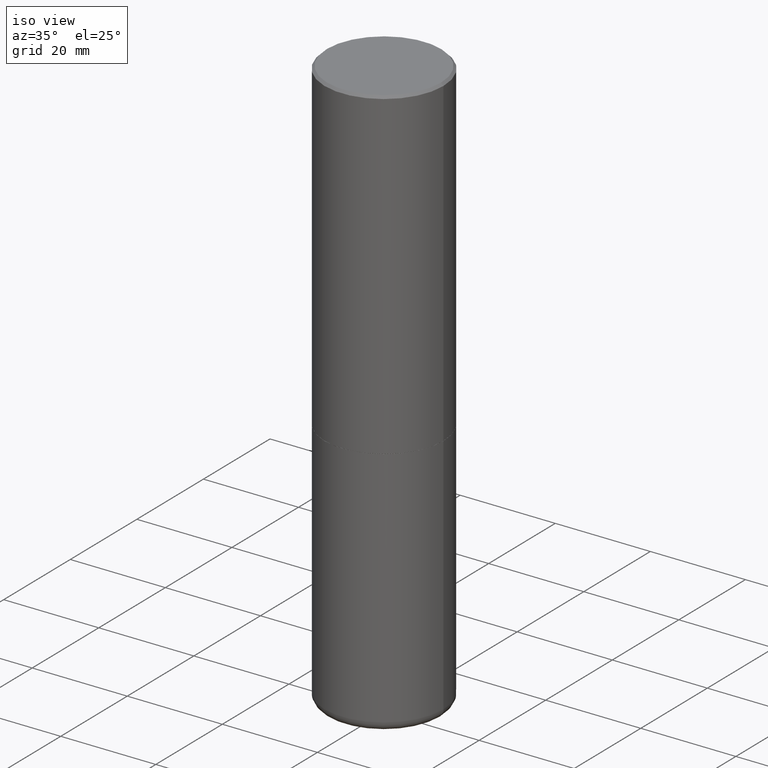
[diagram: clean part render]
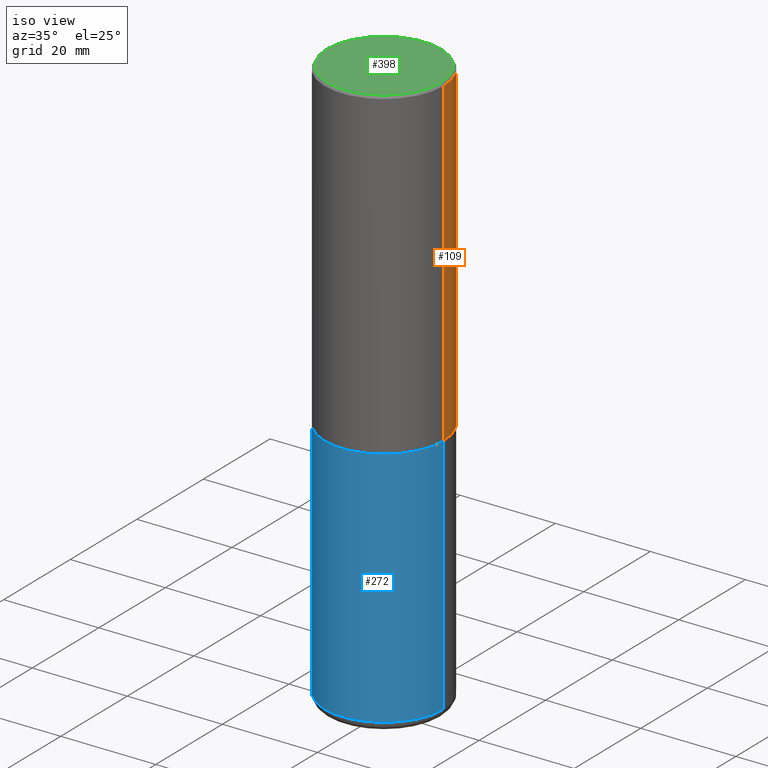
[diagram: same view with three faces highlighted in distinct colors, each labeled with its STEP entity id]
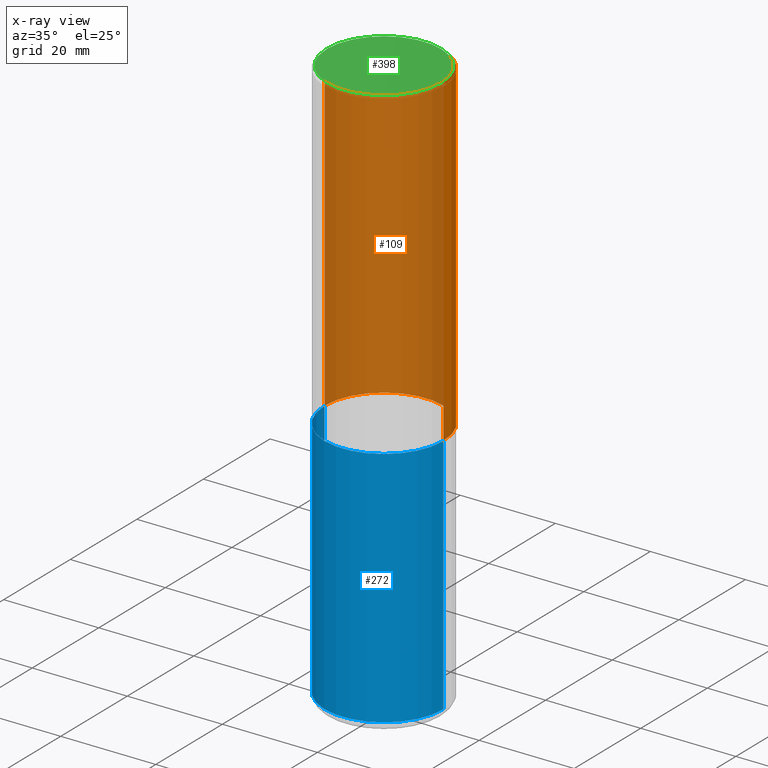
[diagram: x-ray of the same camera — body ghosted, the three highlighted faces saturated]
A machine part, iso view with three faces highlighted in distinct colors.
The next image is the same camera in x-ray (body ghosted, the three faces saturated) — at least one of them is partly hidden behind the body in this view.
Their STEP definitions:

[orange] entity #109 — the highlighted cylindrical surface (partial cylindrical patch) has radius 12.5006 mm, axis along (-0, 0, 1).
#11 = LINE ( 'NONE', #13, #141 ) ;
#13 = CARTESIAN_POINT ( 'NONE',  ( 0.4921500000000000874, -3.436665081823296565E-15, 2.399810400207970163E-29 ) ) ;
#15 = VERTEX_POINT ( 'NONE', #45 ) ;
#16 = FACE_OUTER_BOUND ( 'NONE', #406, .T. ) ;
#36 = DIRECTION ( 'NONE',  ( -2.445468806185136877E-29, 3.491481338843145188E-15, 1.000000000000000000 ) ) ;
#40 = LINE ( 'NONE', #43, #409 ) ;
#43 = CARTESIAN_POINT ( 'NONE',  ( -0.4921500000000000874, 3.496936074043333686E-15, -2.420853904668952350E-29 ) ) ;
#45 = CARTESIAN_POINT ( 'NONE',  ( 0.4921499999999999764, -3.446223716380122349E-15, -0.02000000000000010797 ) ) ;
#50 = ORIENTED_EDGE ( 'NONE', *, *, #128, .F. ) ;
#54 = CARTESIAN_POINT ( 'NONE',  ( 0.000000000000000000, 0.000000000000000000, 0.000000000000000000 ) ) ;
#78 = ORIENTED_EDGE ( 'NONE', *, *, #189, .T. ) ;
#86 = CYLINDRICAL_SURFACE ( 'NONE', #88, 0.4921500000000000874 ) ;
#88 = AXIS2_PLACEMENT_3D ( 'NONE', #54, #293, #240 ) ;
#109 = ADVANCED_FACE ( 'NONE', ( #16 ), #86, .T. ) ;
#128 = EDGE_CURVE ( 'NONE', #207, #15, #11, .T. ) ;
#130 = DIRECTION ( 'NONE',  ( -2.445468806185136877E-29, 3.491481338843145188E-15, 1.000000000000000000 ) ) ;
#141 = VECTOR ( 'NONE', #130, 39.37007874015748143 ) ;
#175 = AXIS2_PLACEMENT_3D ( 'NONE', #232, #401, #361 ) ;
#176 = VERTEX_POINT ( 'NONE', #347 ) ;
#177 = CARTESIAN_POINT ( 'NONE',  ( -0.4921499999999999764, 3.366835455046432478E-15, -0.02000000000000010797 ) ) ;
#189 = EDGE_CURVE ( 'NONE', #207, #176, #243, .T. ) ;
#199 = EDGE_CURVE ( 'NONE', #15, #370, #233, .T. ) ;
#207 = VERTEX_POINT ( 'NONE', #257 ) ;
#229 = DIRECTION ( 'NONE',  ( 1.000000000000000000, -6.982962677686265922E-15, 0.000000000000000000 ) ) ;
#232 = CARTESIAN_POINT ( 'NONE',  ( 6.544563619112662223E-29, -9.343902359012024888E-15, -2.676199999999999690 ) ) ;
#233 = CIRCLE ( 'NONE', #271, 0.4921499999999999764 ) ;
#240 = DIRECTION ( 'NONE',  ( 1.000000000000000000, -6.982962677686265922E-15, 4.876176775795935793E-29 ) ) ;
#241 = ORIENTED_EDGE ( 'NONE', *, *, #250, .T. ) ;
#243 = CIRCLE ( 'NONE', #175, 0.4921500000000003094 ) ;
#250 = EDGE_CURVE ( 'NONE', #176, #370, #40, .T. ) ;
#257 = CARTESIAN_POINT ( 'NONE',  ( 0.4921500000000003094, -1.278056744083532224E-14, -2.676199999999999690 ) ) ;
#271 = AXIS2_PLACEMENT_3D ( 'NONE', #364, #404, #229 ) ;
#293 = DIRECTION ( 'NONE',  ( -2.445468806185136597E-29, 3.491481338843145583E-15, 1.000000000000000000 ) ) ;
#337 = ORIENTED_EDGE ( 'NONE', *, *, #199, .F. ) ;
#347 = CARTESIAN_POINT ( 'NONE',  ( -0.4921500000000003094, -1.209929918851106266E-15, -2.676199999999999690 ) ) ;
#361 = DIRECTION ( 'NONE',  ( 1.000000000000000000, -6.982962677686265922E-15, 0.000000000000000000 ) ) ;
#364 = CARTESIAN_POINT ( 'NONE',  ( 4.890937612370299433E-31, -6.982962677686328587E-17, -0.02000000000000010797 ) ) ;
#370 = VERTEX_POINT ( 'NONE', #177 ) ;
#401 = DIRECTION ( 'NONE',  ( -2.445468806185136597E-29, 3.491481338843145583E-15, 1.000000000000000000 ) ) ;
#404 = DIRECTION ( 'NONE',  ( -2.445468806185136597E-29, 3.491481338843145583E-15, 1.000000000000000000 ) ) ;
#406 = EDGE_LOOP ( 'NONE', ( #78, #241, #337, #50 ) ) ;
#409 = VECTOR ( 'NONE', #36, 39.37007874015748143 ) ;

[blue] entity #272 — the highlighted cylindrical surface (partial cylindrical patch) has radius 12.5006 mm, axis along (-0, 0, 1).
#2 = VECTOR ( 'NONE', #48, 39.37007874015748143 ) ;
#3 = EDGE_CURVE ( 'NONE', #138, #205, #416, .T. ) ;
#5 = CARTESIAN_POINT ( 'NONE',  ( -0.4921499999999998098, -1.286100314657068829E-14, -4.685099999999999376 ) ) ;
#10 = FACE_OUTER_BOUND ( 'NONE', #298, .T. ) ;
#12 = DIRECTION ( 'NONE',  ( -2.445468806185136597E-29, 3.491481338843145583E-15, 1.000000000000000000 ) ) ;
#47 = AXIS2_PLACEMENT_3D ( 'NONE', #127, #368, #399 ) ;
#48 = DIRECTION ( 'NONE',  ( -2.445468806185136877E-29, 3.491481338843145188E-15, 1.000000000000000000 ) ) ;
#51 = VERTEX_POINT ( 'NONE', #100 ) ;
#60 = CARTESIAN_POINT ( 'NONE',  ( 6.547009087918846705E-29, -9.347393840350866318E-15, -2.677199999999999580 ) ) ;
#63 = CARTESIAN_POINT ( 'NONE',  ( 0.4921499999999999764, -1.278405892217416209E-14, -2.677199999999999580 ) ) ;
#71 = VERTEX_POINT ( 'NONE', #5 ) ;
#73 = ORIENTED_EDGE ( 'NONE', *, *, #3, .F. ) ;
#98 = CYLINDRICAL_SURFACE ( 'NONE', #400, 0.4921499999999999764 ) ;
#100 = CARTESIAN_POINT ( 'NONE',  ( 0.4921499999999998098, -1.979460430243731302E-14, -4.685099999999999376 ) ) ;
#123 = AXIS2_PLACEMENT_3D ( 'NONE', #60, #187, #200 ) ;
#127 = CARTESIAN_POINT ( 'NONE',  ( 1.145726590385798145E-28, -1.635793922061402197E-14, -4.685099999999999376 ) ) ;
#136 = CARTESIAN_POINT ( 'NONE',  ( 0.4921499999999999764, -3.436665081823295777E-15, 2.399810400207969603E-29 ) ) ;
#138 = VERTEX_POINT ( 'NONE', #373 ) ;
#151 = CIRCLE ( 'NONE', #47, 0.4921500000000000319 ) ;
#157 = LINE ( 'NONE', #291, #356 ) ;
#187 = DIRECTION ( 'NONE',  ( -2.445468806185136597E-29, 3.491481338843145583E-15, 1.000000000000000000 ) ) ;
#200 = DIRECTION ( 'NONE',  ( 1.000000000000000000, -6.982962677686265922E-15, 0.000000000000000000 ) ) ;
#203 = ORIENTED_EDGE ( 'NONE', *, *, #264, .F. ) ;
#205 = VERTEX_POINT ( 'NONE', #63 ) ;
#261 = DIRECTION ( 'NONE',  ( 1.000000000000000000, -6.982962677686265922E-15, 4.876176775795935793E-29 ) ) ;
#264 = EDGE_CURVE ( 'NONE', #71, #138, #157, .T. ) ;
#272 = ADVANCED_FACE ( 'NONE', ( #10 ), #98, .T. ) ;
#291 = CARTESIAN_POINT ( 'NONE',  ( -0.4921499999999999764, 3.496936074043332897E-15, -2.420853904668951509E-29 ) ) ;
#292 = DIRECTION ( 'NONE',  ( -2.445468806185136877E-29, 3.491481338843145188E-15, 1.000000000000000000 ) ) ;
#296 = CARTESIAN_POINT ( 'NONE',  ( 0.000000000000000000, 0.000000000000000000, 0.000000000000000000 ) ) ;
#298 = EDGE_LOOP ( 'NONE', ( #203, #379, #306, #73 ) ) ;
#306 = ORIENTED_EDGE ( 'NONE', *, *, #381, .T. ) ;
#315 = EDGE_CURVE ( 'NONE', #71, #51, #151, .T. ) ;
#356 = VECTOR ( 'NONE', #292, 39.37007874015748143 ) ;
#368 = DIRECTION ( 'NONE',  ( -2.445468806185136597E-29, 3.491481338843145583E-15, 1.000000000000000000 ) ) ;
#373 = CARTESIAN_POINT ( 'NONE',  ( -0.4921499999999999764, -9.355730456439111248E-15, -2.677199999999999580 ) ) ;
#379 = ORIENTED_EDGE ( 'NONE', *, *, #315, .T. ) ;
#381 = EDGE_CURVE ( 'NONE', #51, #205, #415, .T. ) ;
#399 = DIRECTION ( 'NONE',  ( 1.000000000000000000, -6.982962677686265133E-15, 0.000000000000000000 ) ) ;
#400 = AXIS2_PLACEMENT_3D ( 'NONE', #296, #12, #261 ) ;
#415 = LINE ( 'NONE', #136, #2 ) ;
#416 = CIRCLE ( 'NONE', #123, 0.4921499999999999764 ) ;

[green] entity #398 — the highlighted planar face has unit normal (0, -0, -1).
#6 = DIRECTION ( 'NONE',  ( -2.445468806185136597E-29, 3.491481338843145583E-15, 1.000000000000000000 ) ) ;
#14 = CARTESIAN_POINT ( 'NONE',  ( -6.785034193178930130E-45, 9.687230607472910058E-31, 2.774533118565267978E-16 ) ) ;
#30 = EDGE_CURVE ( 'NONE', #351, #410, #251, .T. ) ;
#31 = DIRECTION ( 'NONE',  ( 1.000000000000000000, -6.982962677686265922E-15, 4.882029041999365698E-29 ) ) ;
#59 = DIRECTION ( 'NONE',  ( 1.000000000000000000, -6.982962677686265922E-15, 4.882029041999365698E-29 ) ) ;
#83 = PLANE ( 'NONE',  #362 ) ;
#101 = CARTESIAN_POINT ( 'NONE',  ( -0.4721499999999996255, 3.331920641658000829E-15, 2.774533118565036250E-16 ) ) ;
#191 = CARTESIAN_POINT ( 'NONE',  ( -6.785034193178930130E-45, 9.687230607472910058E-31, 2.774533118565267978E-16 ) ) ;
#217 = CIRCLE ( 'NONE', #377, 0.4721499999999996255 ) ;
#226 = AXIS2_PLACEMENT_3D ( 'NONE', #191, #6, #31 ) ;
#239 = DIRECTION ( 'NONE',  ( -2.445468806185136597E-29, 3.491481338843145583E-15, 1.000000000000000000 ) ) ;
#245 = CARTESIAN_POINT ( 'NONE',  ( 3.297005828269567997E-15, 0.4721499999999996255, -1.509776258206526442E-15 ) ) ;
#251 = CIRCLE ( 'NONE', #226, 0.4721499999999996255 ) ;
#266 = DIRECTION ( 'NONE',  ( -1.000000000000000000, 6.982962677686265922E-15, -4.876176775795935793E-29 ) ) ;
#268 = ORIENTED_EDGE ( 'NONE', *, *, #30, .T. ) ;
#273 = CARTESIAN_POINT ( 'NONE',  ( 0.4721499999999996255, -3.342703923013973791E-15, 2.774533118565500199E-16 ) ) ;
#278 = ORIENTED_EDGE ( 'NONE', *, *, #358, .T. ) ;
#297 = EDGE_LOOP ( 'NONE', ( #268, #278 ) ) ;
#351 = VERTEX_POINT ( 'NONE', #101 ) ;
#358 = EDGE_CURVE ( 'NONE', #410, #351, #217, .T. ) ;
#362 = AXIS2_PLACEMENT_3D ( 'NONE', #245, #414, #266 ) ;
#376 = FACE_OUTER_BOUND ( 'NONE', #297, .T. ) ;
#377 = AXIS2_PLACEMENT_3D ( 'NONE', #14, #239, #59 ) ;
#398 = ADVANCED_FACE ( 'NONE', ( #376 ), #83, .F. ) ;
#410 = VERTEX_POINT ( 'NONE', #273 ) ;
#414 = DIRECTION ( 'NONE',  ( 2.438088387897960049E-29, -3.491481338843145188E-15, -1.000000000000000000 ) ) ;